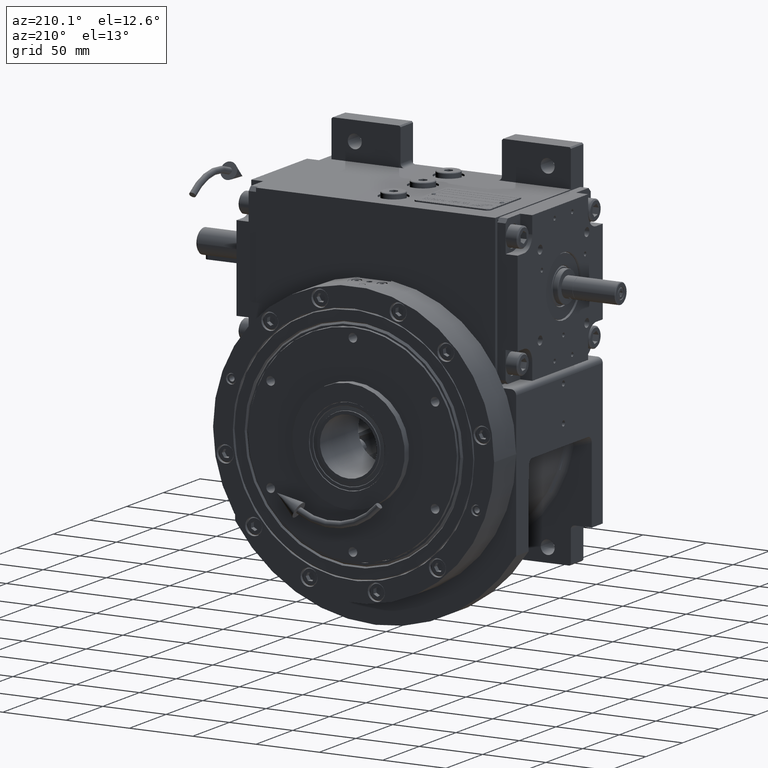
[diagram: clean part render]
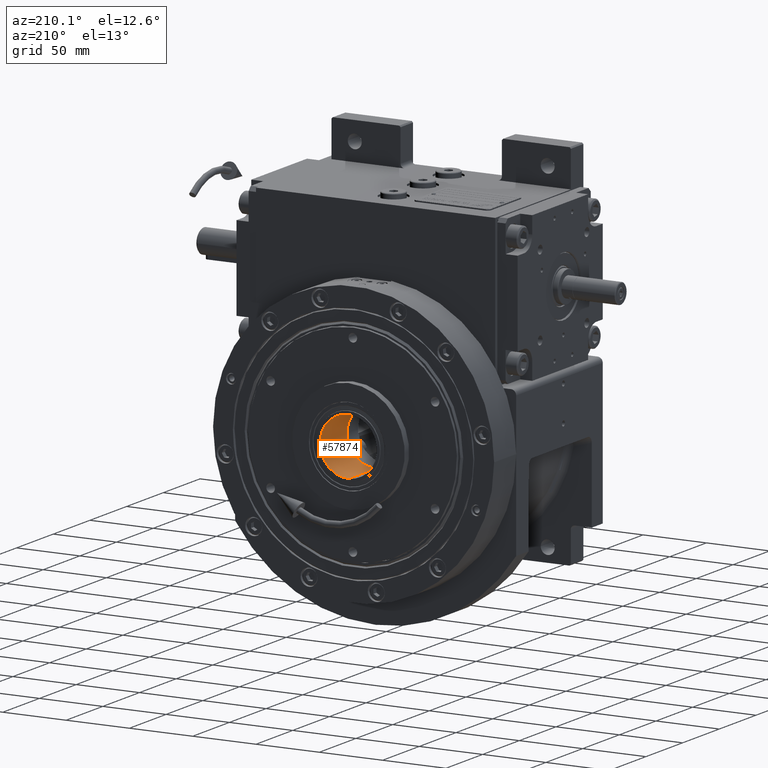
[diagram: same view with one face highlighted and labeled with its STEP entity id]
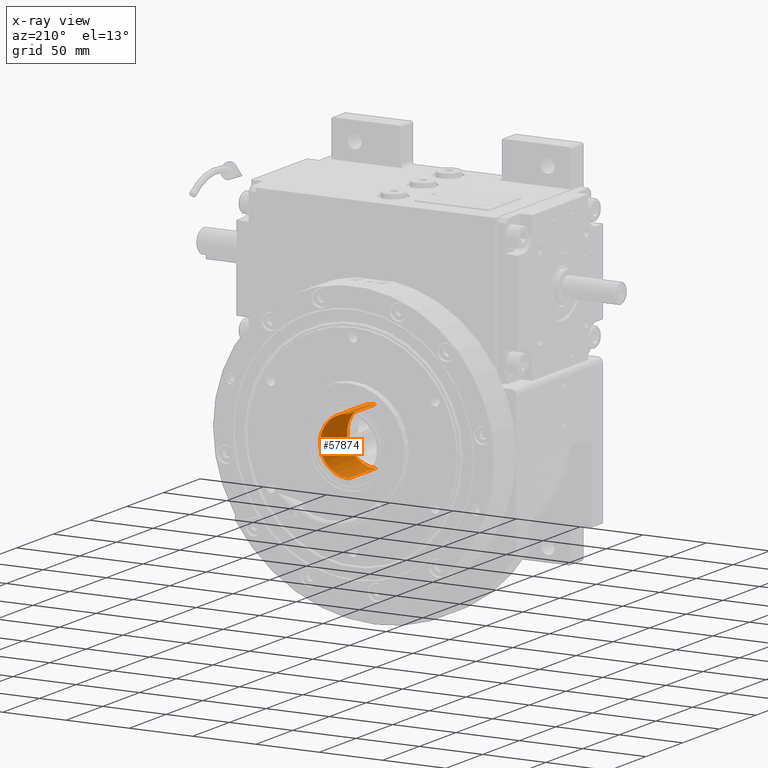
[diagram: x-ray of the same camera — body ghosted, the highlighted face saturated]
A machine part, auxiliary view. The second image highlights one B-rep face of the part: STEP entity #57874.
The next image is the same camera in x-ray: the body ghosted, the highlighted face saturated — about 0% of this face is hidden behind the body in this view.
In plain terms, the highlighted cylindrical surface (edge-blend (fillet) strip) has radius 22.5 mm, axis along (0, -1, 0).
Its self-contained STEP definition (entity closure, byte-faithful):
#781 = CIRCLE ( 'NONE', #49076, 22.50000000000000000 ) ;
#2771 = CYLINDRICAL_SURFACE ( 'NONE', #64707, 22.50000000000000000 ) ;
#7759 = DIRECTION ( 'NONE',  ( 0.000000000000000000, 0.000000000000000000, -1.000000000000000000 ) ) ;
#8093 = AXIS2_PLACEMENT_3D ( 'NONE', #43278, #12911, #45267 ) ;
#8727 = DIRECTION ( 'NONE',  ( 0.000000000000000000, 0.000000000000000000, -1.000000000000000000 ) ) ;
#9415 = CARTESIAN_POINT ( 'NONE',  ( 0.000000000000000000, 3.552713678800499352E-15, -26.99999999999999645 ) ) ;
#10845 = EDGE_LOOP ( 'NONE', ( #26896, #65582, #24669, #52444 ) ) ;
#11004 = CARTESIAN_POINT ( 'NONE',  ( 0.000000000000000000, 2.571673343026990270E-15, 9.999999999999994671 ) ) ;
#11321 = VERTEX_POINT ( 'NONE', #38606 ) ;
#12191 = EDGE_CURVE ( 'NONE', #39984, #11321, #39732, .T. ) ;
#12911 = DIRECTION ( 'NONE',  ( 0.000000000000000000, 0.000000000000000000, -1.000000000000000000 ) ) ;
#20193 = CARTESIAN_POINT ( 'NONE',  ( -22.50000000000000000, 8.572244476756641794E-16, 9.999999999999994671 ) ) ;
#20886 = VECTOR ( 'NONE', #36275, 1000.000000000000000 ) ;
#23890 = VERTEX_POINT ( 'NONE', #20193 ) ;
#24669 = ORIENTED_EDGE ( 'NONE', *, *, #36725, .F. ) ;
#24870 = CIRCLE ( 'NONE', #8093, 22.50000000000000000 ) ;
#26896 = ORIENTED_EDGE ( 'NONE', *, *, #12191, .T. ) ;
#29131 = DIRECTION ( 'NONE',  ( 0.000000000000000000, 0.000000000000000000, 1.000000000000000000 ) ) ;
#30846 = DIRECTION ( 'NONE',  ( 1.000000000000000000, -1.578983857244664921E-16, 0.000000000000000000 ) ) ;
#31332 = VERTEX_POINT ( 'NONE', #49104 ) ;
#35931 = LINE ( 'NONE', #52106, #20886 ) ;
#36275 = DIRECTION ( 'NONE',  ( 0.000000000000000000, 0.000000000000000000, -1.000000000000000000 ) ) ;
#36725 = EDGE_CURVE ( 'NONE', #23890, #31332, #35931, .T. ) ;
#38606 = CARTESIAN_POINT ( 'NONE',  ( 22.50000000000000000, 1.775709547036180256E-15, -26.99999999999999645 ) ) ;
#39732 = LINE ( 'NONE', #49278, #49835 ) ;
#39984 = VERTEX_POINT ( 'NONE', #67931 ) ;
#43278 = CARTESIAN_POINT ( 'NONE',  ( 0.000000000000000000, 3.552713678800499352E-15, 9.999999999999994671 ) ) ;
#45267 = DIRECTION ( 'NONE',  ( 1.000000000000000000, -1.578983857244664921E-16, 0.000000000000000000 ) ) ;
#45327 = DIRECTION ( 'NONE',  ( -1.000000000000000000, 0.000000000000000000, 0.000000000000000000 ) ) ;
#49076 = AXIS2_PLACEMENT_3D ( 'NONE', #9415, #8727, #30846 ) ;
#49104 = CARTESIAN_POINT ( 'NONE',  ( -22.50000000000000000, 8.572244476756641794E-16, -26.99999999999999645 ) ) ;
#49278 = CARTESIAN_POINT ( 'NONE',  ( 22.50000000000000000, 5.327128641108539387E-15, 9.999999999999994671 ) ) ;
#49835 = VECTOR ( 'NONE', #7759, 1000.000000000000000 ) ;
#52106 = CARTESIAN_POINT ( 'NONE',  ( -22.50000000000000000, 2.571673343026990270E-15, 9.999999999999994671 ) ) ;
#52444 = ORIENTED_EDGE ( 'NONE', *, *, #69011, .F. ) ;
#55155 = FACE_OUTER_BOUND ( 'NONE', #10845, .T. ) ;
#56760 = EDGE_CURVE ( 'NONE', #11321, #31332, #781, .T. ) ;
#57874 = ADVANCED_FACE ( 'NONE', ( #55155 ), #2771, .F. ) ;
#64707 = AXIS2_PLACEMENT_3D ( 'NONE', #11004, #29131, #45327 ) ;
#65582 = ORIENTED_EDGE ( 'NONE', *, *, #56760, .T. ) ;
#67931 = CARTESIAN_POINT ( 'NONE',  ( 22.50000000000000000, 1.775709547036180256E-15, 9.999999999999994671 ) ) ;
#69011 = EDGE_CURVE ( 'NONE', #39984, #23890, #24870, .T. ) ;